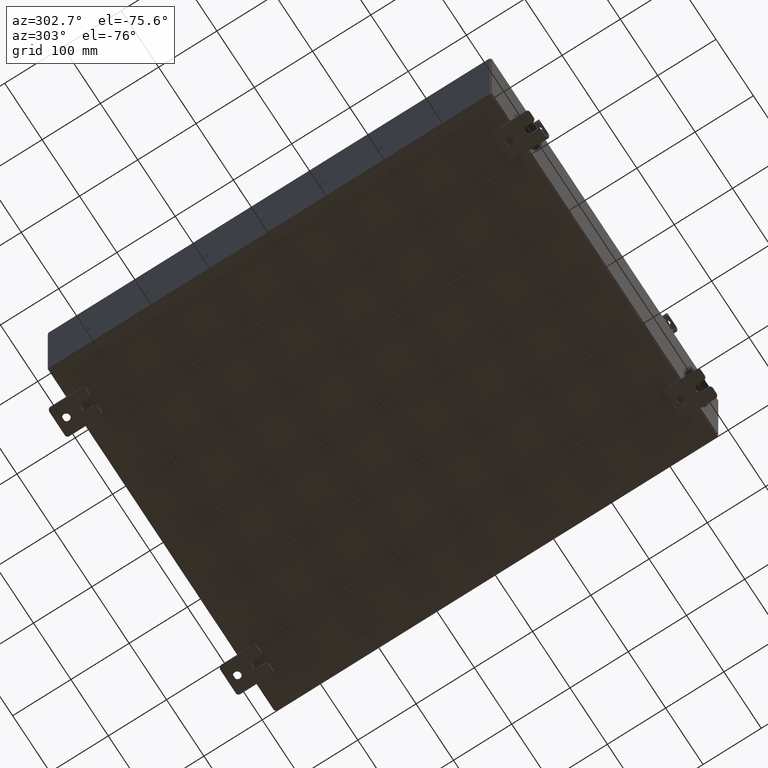
[diagram: clean part render]
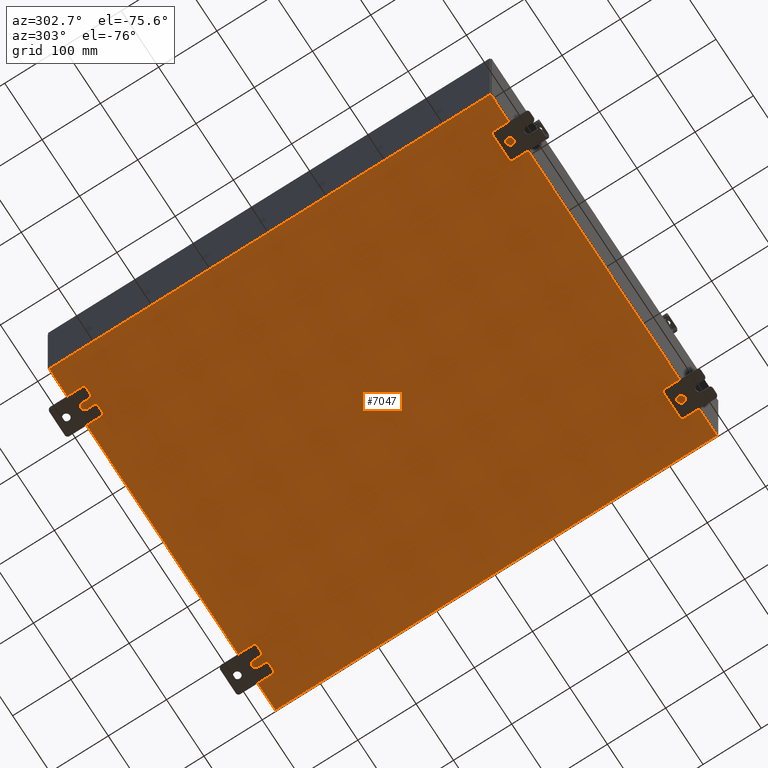
[diagram: same view with one face highlighted and labeled with its STEP entity id]
A machine part, auxiliary view. The second image highlights one B-rep face of the part: STEP entity #7047.
In plain terms, the highlighted planar face has unit normal (0, 0, -1).
Its self-contained STEP definition (entity closure, byte-faithful):
#99 = ORIENTED_EDGE ( 'NONE', *, *, #22906, .T. ) ;
#1006 = VERTEX_POINT ( 'NONE', #7499 ) ;
#2118 = FACE_OUTER_BOUND ( 'NONE', #22833, .T. ) ;
#4093 = CARTESIAN_POINT ( 'NONE',  ( 0.0000000000000000000, 0.0000000000000000000, -0.07470000000000000300 ) ) ;
#4146 = VERTEX_POINT ( 'NONE', #19217 ) ;
#6178 = DIRECTION ( 'NONE',  ( 1.000000000000000000, 0.0000000000000000000, 0.0000000000000000000 ) ) ;
#7047 = ADVANCED_FACE ( 'NONE', ( #2118 ), #30020, .T. ) ;
#7499 = CARTESIAN_POINT ( 'NONE',  ( -11.91230000000000500, -14.92530000000000000, -0.07469999999999994700 ) ) ;
#8554 = LINE ( 'NONE', #34764, #31656 ) ;
#8959 = EDGE_CURVE ( 'NONE', #1006, #4146, #25468, .T. ) ;
#9888 = DIRECTION ( 'NONE',  ( 0.0000000000000000000, 0.0000000000000000000, -1.000000000000000000 ) ) ;
#10126 = VERTEX_POINT ( 'NONE', #12595 ) ;
#12243 = ORIENTED_EDGE ( 'NONE', *, *, #8959, .F. ) ;
#12330 = CARTESIAN_POINT ( 'NONE',  ( -12.00000000000000500, 14.92530000000000000, -0.07470000000000000300 ) ) ;
#12595 = CARTESIAN_POINT ( 'NONE',  ( 11.91229999999999700, 14.92530000000000000, -0.07470000000000226500 ) ) ;
#13450 = CARTESIAN_POINT ( 'NONE',  ( -11.91230000000000500, 14.92530000000000000, -0.07470000000000000300 ) ) ;
#13690 = ORIENTED_EDGE ( 'NONE', *, *, #24778, .F. ) ;
#17272 = AXIS2_PLACEMENT_3D ( 'NONE', #4093, #9888, #30125 ) ;
#17773 = VECTOR ( 'NONE', #6178, 39.37007874015748100 ) ;
#17947 = LINE ( 'NONE', #12330, #26530 ) ;
#19217 = CARTESIAN_POINT ( 'NONE',  ( 11.91229999999998800, -14.92530000000000000, -0.07470000000000000300 ) ) ;
#19592 = ORIENTED_EDGE ( 'NONE', *, *, #31964, .T. ) ;
#22833 = EDGE_LOOP ( 'NONE', ( #12243, #19592, #13690, #99 ) ) ;
#22906 = EDGE_CURVE ( 'NONE', #10126, #4146, #8554, .T. ) ;
#23687 = VECTOR ( 'NONE', #26984, 39.37007874015748100 ) ;
#24108 = CARTESIAN_POINT ( 'NONE',  ( -11.91230000000000500, -14.92530000000000000, -0.07469999999999994700 ) ) ;
#24778 = EDGE_CURVE ( 'NONE', #10126, #28455, #17947, .T. ) ;
#25468 = LINE ( 'NONE', #29299, #17773 ) ;
#26530 = VECTOR ( 'NONE', #35384, 39.37007874015748100 ) ;
#26984 = DIRECTION ( 'NONE',  ( -0.0000000000000000000, 1.000000000000000000, -0.0000000000000000000 ) ) ;
#28455 = VERTEX_POINT ( 'NONE', #13450 ) ;
#28912 = DIRECTION ( 'NONE',  ( -0.0000000000000000000, -1.000000000000000000, 8.208677865577646300E-017 ) ) ;
#29299 = CARTESIAN_POINT ( 'NONE',  ( -12.00000000000000500, -14.92530000000000000, -0.07470000000000000300 ) ) ;
#30020 = PLANE ( 'NONE',  #17272 ) ;
#30125 = DIRECTION ( 'NONE',  ( -1.000000000000000000, 0.0000000000000000000, -0.0000000000000000000 ) ) ;
#31361 = LINE ( 'NONE', #24108, #23687 ) ;
#31656 = VECTOR ( 'NONE', #28912, 39.37007874015748100 ) ;
#31964 = EDGE_CURVE ( 'NONE', #1006, #28455, #31361, .T. ) ;
#34764 = CARTESIAN_POINT ( 'NONE',  ( 11.91229999999999700, 14.92530000000000000, -0.07470000000000226500 ) ) ;
#35384 = DIRECTION ( 'NONE',  ( -1.000000000000000000, -0.0000000000000000000, -0.0000000000000000000 ) ) ;